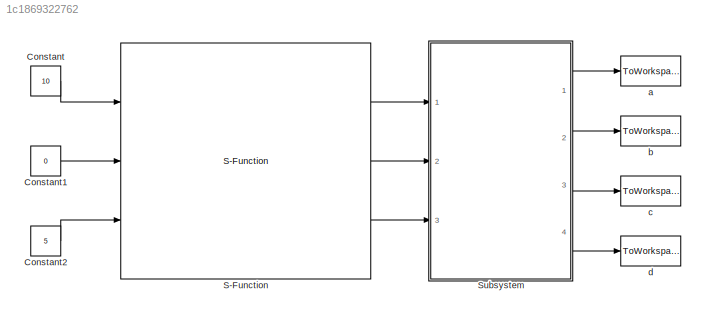
MODEL slx_1c1869322762
KIND model
CONFIG AbsTol = auto
CONFIG FixedStep = 2.5
CONFIG MaxStep = auto
CONFIG MinStep = auto
CONFIG RelTol = 1e-3
CONFIG SampleTimeConstraint = Unconstrained
CONFIG Solver = FixedStepDiscrete
CONFIG SolverMode = Auto
CONFIG SolverName = FixedStepDiscrete
CONFIG StartTime = 0.0
CONFIG StopTime = 10
BLOCK [Constant] Constant
  Value = 10
BLOCK [Constant] Constant1
  Value = 0
BLOCK [Constant] Constant2
  Value = 5
BLOCK [S-Function] S-Function
  EnableBusSupport = off
  FunctionName = Algorithm
  Ports = [3, 3]
  SFunctionDeploymentMode = off
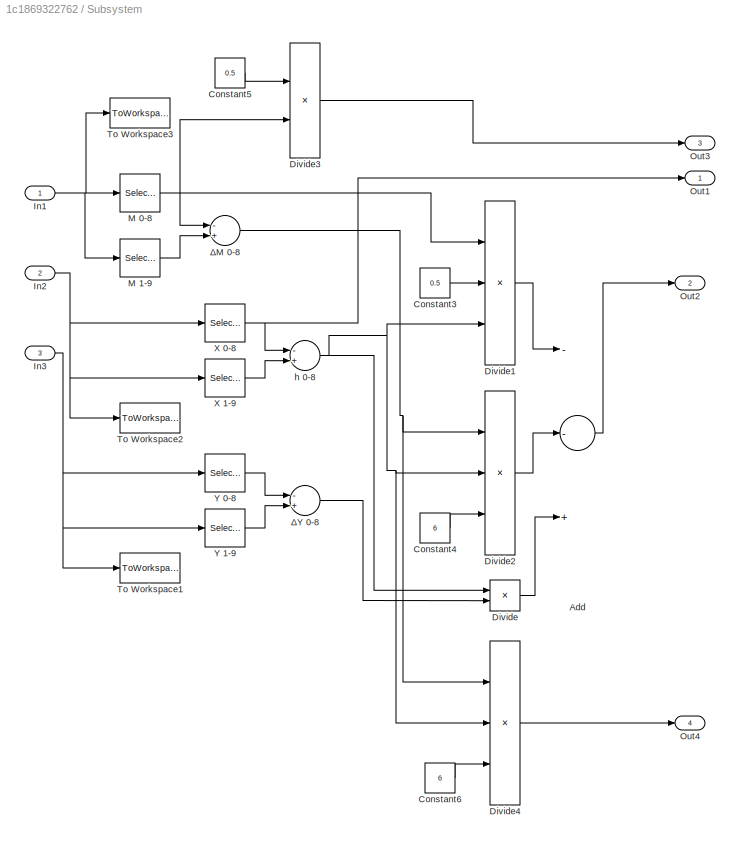
BLOCK [SubSystem] Subsystem
  Ports = [3, 4]
  RequestExecContextInheritance = off
  Variant = off
BLOCK [Sum] Subsystem/Add
  InputSameDT = off
  Inputs = --+
  OutDataTypeStr = Inherit: Inherit via internal rule
  Ports = [3, 1]
  SaturateOnIntegerOverflow = off
BLOCK [Constant] Subsystem/Constant3
  Value = 0.5
BLOCK [Constant] Subsystem/Constant4
  Value = 6
BLOCK [Constant] Subsystem/Constant5
  Value = 0.5
BLOCK [Constant] Subsystem/Constant6
  Value = 6
BLOCK [Product] Subsystem/Divide
  InputSameDT = off
  Inputs = /*
  OutDataTypeStr = Inherit: Inherit via internal rule
  Ports = [2, 1]
  RndMeth = Floor
  SaturateOnIntegerOverflow = off
BLOCK [Product] Subsystem/Divide1
  InputSameDT = off
  Inputs = ***
  OutDataTypeStr = Inherit: Inherit via internal rule
  Ports = [3, 1]
  RndMeth = Floor
  SaturateOnIntegerOverflow = off
BLOCK [Product] Subsystem/Divide2
  InputSameDT = off
  Inputs = **/
  OutDataTypeStr = Inherit: Inherit via internal rule
  Ports = [3, 1]
  RndMeth = Floor
  SaturateOnIntegerOverflow = off
BLOCK [Product] Subsystem/Divide3
  InputSameDT = off
  Inputs = **
  OutDataTypeStr = Inherit: Inherit via internal rule
  Ports = [2, 1]
  RndMeth = Floor
  SaturateOnIntegerOverflow = off
BLOCK [Product] Subsystem/Divide4
  InputSameDT = off
  Inputs = *//
  OutDataTypeStr = Inherit: Inherit via internal rule
  Ports = [3, 1]
  RndMeth = Floor
  SaturateOnIntegerOverflow = off
BLOCK [Inport] Subsystem/In1
  IconDisplay = Port number
BLOCK [Inport] Subsystem/In2
  IconDisplay = Port number
  Port = 2
BLOCK [Inport] Subsystem/In3
  IconDisplay = Port number
  Port = 3
BLOCK [Selector] Subsystem/M 0-8
  IndexOptions = Index vector (dialog)
  Indices = [1 2 3 4 5 6 7 8 9]
  InputPortWidth = 10
  OutputSizes = 1
  Ports = [1, 1]
BLOCK [Selector] Subsystem/M 1-9
  IndexOptions = Index vector (dialog)
  Indices = [2 3 4 5 6 7 8 9 10]
  InputPortWidth = 10
  OutputSizes = 1
  Ports = [1, 1]
BLOCK [Outport] Subsystem/Out1
  IconDisplay = Port number
BLOCK [Outport] Subsystem/Out2
  IconDisplay = Port number
  Port = 2
BLOCK [Outport] Subsystem/Out3
  IconDisplay = Port number
  Port = 3
BLOCK [Outport] Subsystem/Out4
  IconDisplay = Port number
  Port = 4
BLOCK [ToWorkspace] Subsystem/To Workspace1
  FixptAsFi = on
  MaxDataPoints = inf
  Ports = [1]
  SampleTime = -1
  Save2DSignal = 3-D array (concatenate along third dimension)
  SaveFormat = Timeseries
  VariableName = Y
BLOCK [ToWorkspace] Subsystem/To Workspace2
  FixptAsFi = on
  MaxDataPoints = inf
  Ports = [1]
  SampleTime = -1
  Save2DSignal = 3-D array (concatenate along third dimension)
  SaveFormat = Timeseries
  VariableName = X
BLOCK [ToWorkspace] Subsystem/To Workspace3
  FixptAsFi = on
  MaxDataPoints = inf
  Ports = [1]
  SampleTime = -1
  Save2DSignal = 3-D array (concatenate along third dimension)
  SaveFormat = Timeseries
  VariableName = M
BLOCK [Selector] Subsystem/X 0-8
  IndexOptions = Index vector (dialog)
  Indices = [1 2 3 4 5 6 7 8 9]
  InputPortWidth = 10
  OutputSizes = 1
  Ports = [1, 1]
BLOCK [Selector] Subsystem/X 1-9
  IndexOptions = Index vector (dialog)
  Indices = [2 3 4 5 6 7 8 9 10]
  InputPortWidth = 10
  OutputSizes = 1
  Ports = [1, 1]
BLOCK [Selector] Subsystem/Y 0-8
  IndexOptions = Index vector (dialog)
  Indices = [1 2 3 4 5 6 7 8 9]
  InputPortWidth = 10
  OutputSizes = 1
  Ports = [1, 1]
BLOCK [Selector] Subsystem/Y 1-9
  IndexOptions = Index vector (dialog)
  Indices = [2 3 4 5 6 7 8 9 10]
  InputPortWidth = 10
  OutputSizes = 1
  Ports = [1, 1]
BLOCK [Sum] Subsystem/h 0-8
  InputSameDT = off
  Inputs = -+
  OutDataTypeStr = Inherit: Inherit via internal rule
  Ports = [2, 1]
  SaturateOnIntegerOverflow = off
BLOCK [Sum] Subsystem/ΔM 0-8
  InputSameDT = off
  Inputs = -+
  OutDataTypeStr = Inherit: Inherit via internal rule
  Ports = [2, 1]
  SaturateOnIntegerOverflow = off
BLOCK [Sum] Subsystem/ΔY 0-8
  InputSameDT = off
  Inputs = -+
  OutDataTypeStr = Inherit: Inherit via internal rule
  Ports = [2, 1]
  SaturateOnIntegerOverflow = off
BLOCK [ToWorkspace] a
  FixptAsFi = on
  MaxDataPoints = inf
  Ports = [1]
  SampleTime = -1
  Save2DSignal = 3-D array (concatenate along third dimension)
  SaveFormat = Timeseries
  VariableName = a
BLOCK [ToWorkspace] b
  FixptAsFi = on
  MaxDataPoints = inf
  Ports = [1]
  SampleTime = -1
  Save2DSignal = 3-D array (concatenate along third dimension)
  SaveFormat = Timeseries
  VariableName = b
BLOCK [ToWorkspace] c
  FixptAsFi = on
  MaxDataPoints = inf
  Ports = [1]
  SampleTime = -1
  Save2DSignal = 3-D array (concatenate along third dimension)
  SaveFormat = Timeseries
  VariableName = c
BLOCK [ToWorkspace] d
  FixptAsFi = on
  MaxDataPoints = inf
  Ports = [1]
  SampleTime = -1
  Save2DSignal = 3-D array (concatenate along third dimension)
  SaveFormat = Timeseries
  VariableName = d
LINE Constant1:1 -> S-Function:2
LINE Constant2:1 -> S-Function:3
LINE Constant:1 -> S-Function:1
LINE S-Function:1 -> Subsystem:1
LINE S-Function:2 -> Subsystem:2
LINE S-Function:3 -> Subsystem:3
LINE Subsystem/Add:1 -> Subsystem/Out2:1
LINE Subsystem/Constant3:1 -> Subsystem/Divide1:2
LINE Subsystem/Constant4:1 -> Subsystem/Divide2:3
LINE Subsystem/Constant5:1 -> Subsystem/Divide3:1
LINE Subsystem/Constant6:1 -> Subsystem/Divide4:3
LINE Subsystem/Divide1:1 -> Subsystem/Add:1
LINE Subsystem/Divide2:1 -> Subsystem/Add:2
LINE Subsystem/Divide3:1 -> Subsystem/Out3:1
LINE Subsystem/Divide4:1 -> Subsystem/Out4:1
LINE Subsystem/Divide:1 -> Subsystem/Add:3
NET Subsystem/In1:1 -> Subsystem/M 0-8:1, Subsystem/M 1-9:1, Subsystem/To Workspace3:1
NET Subsystem/In2:1 -> Subsystem/To Workspace2:1, Subsystem/X 0-8:1, Subsystem/X 1-9:1
NET Subsystem/In3:1 -> Subsystem/To Workspace1:1, Subsystem/Y 0-8:1, Subsystem/Y 1-9:1
NET Subsystem/M 0-8:1 -> Subsystem/Divide1:1, Subsystem/Divide3:2, Subsystem/ΔM 0-8:1
LINE Subsystem/M 1-9:1 -> Subsystem/ΔM 0-8:2
NET Subsystem/X 0-8:1 -> Subsystem/Out1:1, Subsystem/h 0-8:1
LINE Subsystem/X 1-9:1 -> Subsystem/h 0-8:2
LINE Subsystem/Y 0-8:1 -> Subsystem/ΔY 0-8:1
LINE Subsystem/Y 1-9:1 -> Subsystem/ΔY 0-8:2
NET Subsystem/h 0-8:1 -> Subsystem/Divide1:3, Subsystem/Divide2:2, Subsystem/Divide4:2, Subsystem/Divide:1
NET Subsystem/ΔM 0-8:1 -> Subsystem/Divide2:1, Subsystem/Divide4:1
LINE Subsystem/ΔY 0-8:1 -> Subsystem/Divide:2
LINE Subsystem:1 -> a:1
LINE Subsystem:2 -> b:1
LINE Subsystem:3 -> c:1
LINE Subsystem:4 -> d:1
note: NET lines group one-source signal fan-out (src -> all destinations, sorted); 1:1 wires keep LINE
